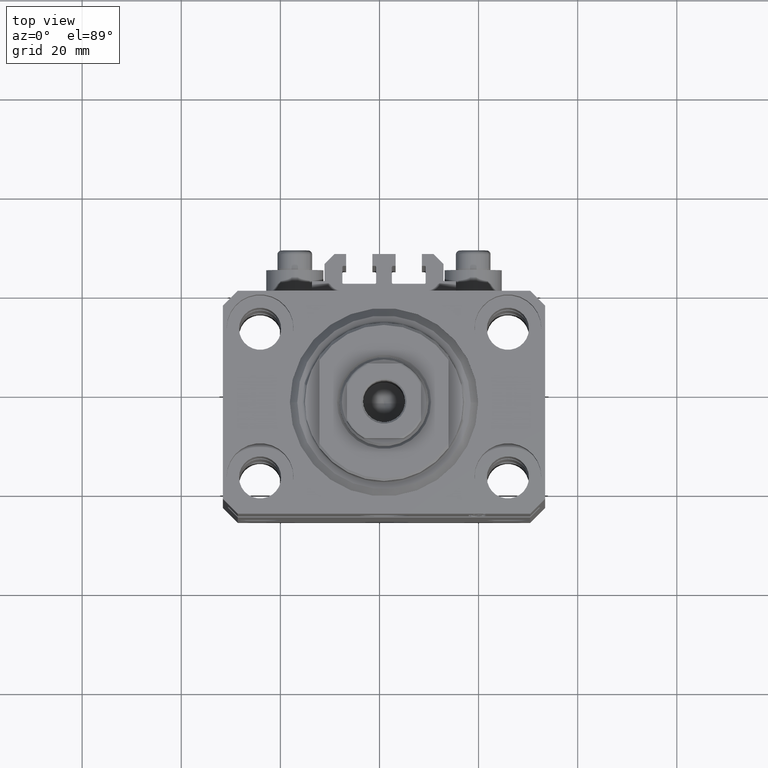
[diagram: clean part render]
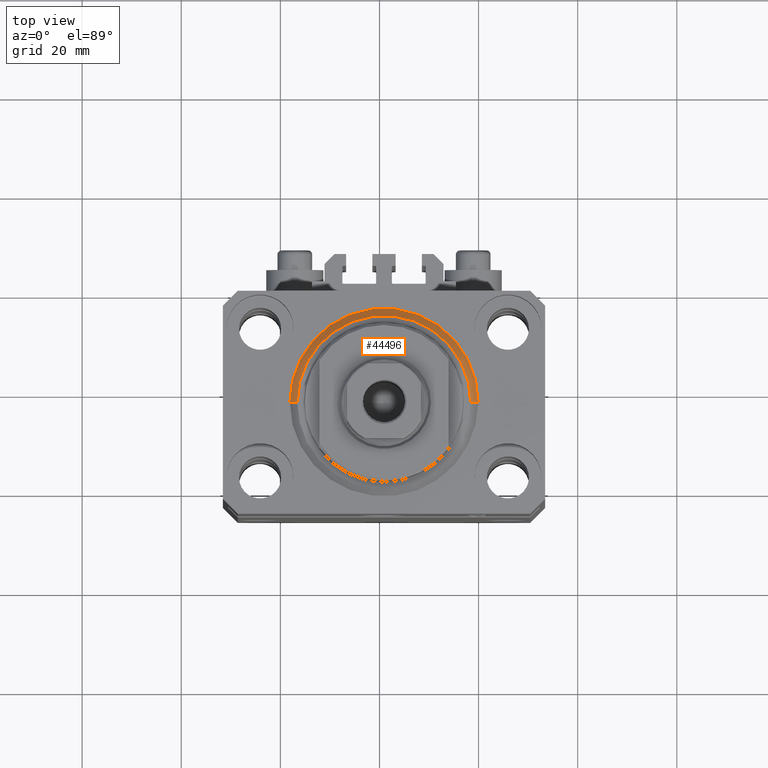
[diagram: same view with one face highlighted and labeled with its STEP entity id]
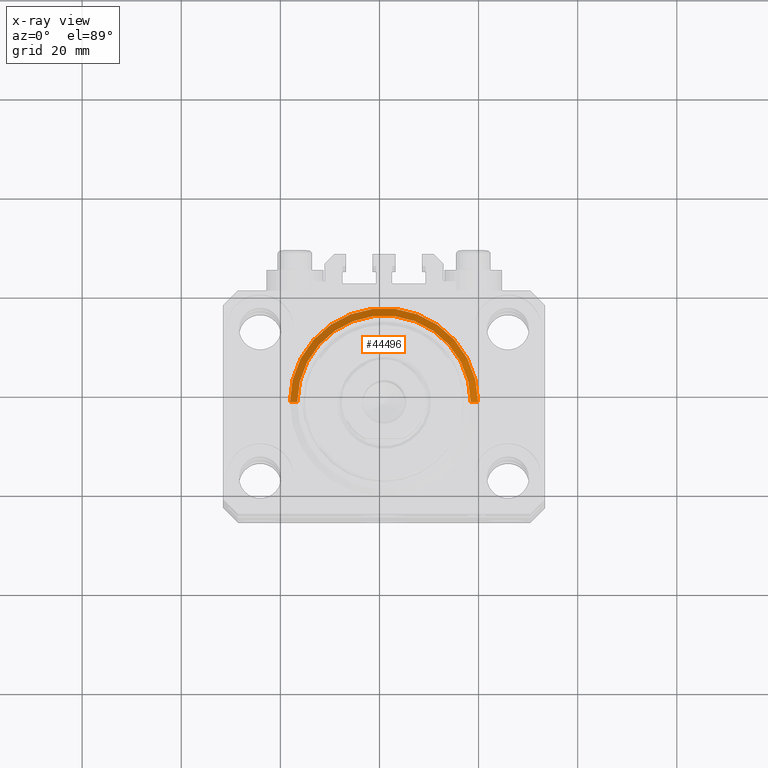
[diagram: x-ray of the same camera — body ghosted, the highlighted face saturated]
A machine part, top view. The second image highlights one B-rep face of the part: STEP entity #44496.
The next image is the same camera in x-ray: the body ghosted, the highlighted face saturated — about 0% of this face is hidden behind the body in this view.
In plain terms, the highlighted conical surface has half-angle 45 deg.
Its self-contained STEP definition (entity closure, byte-faithful):
#68 = DIRECTION ( 'NONE',  ( 1.000000000000000000, 0.000000000000000000, 0.000000000000000000 ) ) ;
#765 = CARTESIAN_POINT ( 'NONE',  ( 0.000000000000000000, 0.000000000000000000, 0.000000000000000000 ) ) ;
#910 = VERTEX_POINT ( 'NONE', #20960 ) ;
#1485 = VERTEX_POINT ( 'NONE', #16621 ) ;
#1857 = CARTESIAN_POINT ( 'NONE',  ( 0.000000000000000000, 0.000000000000000000, 1.500000000000004885 ) ) ;
#2147 = AXIS2_PLACEMENT_3D ( 'NONE', #765, #36961, #68 ) ;
#4228 = LINE ( 'NONE', #40653, #10143 ) ;
#4727 = ORIENTED_EDGE ( 'NONE', *, *, #47454, .F. ) ;
#7697 = EDGE_LOOP ( 'NONE', ( #8025, #41049, #4727, #43456 ) ) ;
#8025 = ORIENTED_EDGE ( 'NONE', *, *, #16260, .F. ) ;
#10143 = VECTOR ( 'NONE', #37050, 1000.000000000000000 ) ;
#10332 = CARTESIAN_POINT ( 'NONE',  ( 19.00000000000000000, 0.000000000000000000, 1.500000000000004885 ) ) ;
#11211 = CARTESIAN_POINT ( 'NONE',  ( -19.00000000000000000, 0.000000000000000000, 1.500000000000004885 ) ) ;
#11875 = VERTEX_POINT ( 'NONE', #13965 ) ;
#11923 = CARTESIAN_POINT ( 'NONE',  ( 0.000000000000000000, 0.000000000000000000, 1.500000000000004885 ) ) ;
#12950 = DIRECTION ( 'NONE',  ( 1.000000000000000000, 0.000000000000000000, 0.000000000000000000 ) ) ;
#13965 = CARTESIAN_POINT ( 'NONE',  ( 19.00000000000000000, 2.326828918379970970E-15, 1.500000000000004885 ) ) ;
#16260 = EDGE_CURVE ( 'NONE', #1485, #910, #35279, .T. ) ;
#16621 = CARTESIAN_POINT ( 'NONE',  ( -17.49999999999999289, 2.234980408443919215E-15, 0.000000000000000000 ) ) ;
#18286 = DIRECTION ( 'NONE',  ( 0.7071067811865483499, 0.000000000000000000, 0.7071067811865467956 ) ) ;
#19166 = AXIS2_PLACEMENT_3D ( 'NONE', #11923, #26179, #30275 ) ;
#20439 = FACE_OUTER_BOUND ( 'NONE', #7697, .T. ) ;
#20960 = CARTESIAN_POINT ( 'NONE',  ( 17.49999999999999289, 0.000000000000000000, 0.000000000000000000 ) ) ;
#24821 = LINE ( 'NONE', #10332, #28586 ) ;
#25435 = DIRECTION ( 'NONE',  ( -0.000000000000000000, -0.000000000000000000, 1.000000000000000000 ) ) ;
#26179 = DIRECTION ( 'NONE',  ( -0.000000000000000000, -0.000000000000000000, 1.000000000000000000 ) ) ;
#26762 = EDGE_CURVE ( 'NONE', #910, #11875, #24821, .T. ) ;
#28586 = VECTOR ( 'NONE', #18286, 1000.000000000000000 ) ;
#29044 = EDGE_CURVE ( 'NONE', #1485, #33217, #4228, .T. ) ;
#30275 = DIRECTION ( 'NONE',  ( 1.000000000000000000, 0.000000000000000000, 0.000000000000000000 ) ) ;
#33217 = VERTEX_POINT ( 'NONE', #11211 ) ;
#33800 = CIRCLE ( 'NONE', #19166, 19.00000000000000000 ) ;
#35279 = CIRCLE ( 'NONE', #2147, 17.49999999999999289 ) ;
#36934 = CONICAL_SURFACE ( 'NONE', #40772, 19.00000000000000000, 0.7853981633974492782 ) ;
#36961 = DIRECTION ( 'NONE',  ( -0.000000000000000000, -0.000000000000000000, -1.000000000000000000 ) ) ;
#37050 = DIRECTION ( 'NONE',  ( -0.7071067811865483499, 8.659560562354943952E-17, 0.7071067811865467956 ) ) ;
#40653 = CARTESIAN_POINT ( 'NONE',  ( -19.00000000000000000, 2.326828918379970970E-15, 1.500000000000004885 ) ) ;
#40772 = AXIS2_PLACEMENT_3D ( 'NONE', #1857, #25435, #12950 ) ;
#41049 = ORIENTED_EDGE ( 'NONE', *, *, #29044, .T. ) ;
#43456 = ORIENTED_EDGE ( 'NONE', *, *, #26762, .F. ) ;
#44496 = ADVANCED_FACE ( 'NONE', ( #20439 ), #36934, .T. ) ;
#47454 = EDGE_CURVE ( 'NONE', #11875, #33217, #33800, .T. ) ;